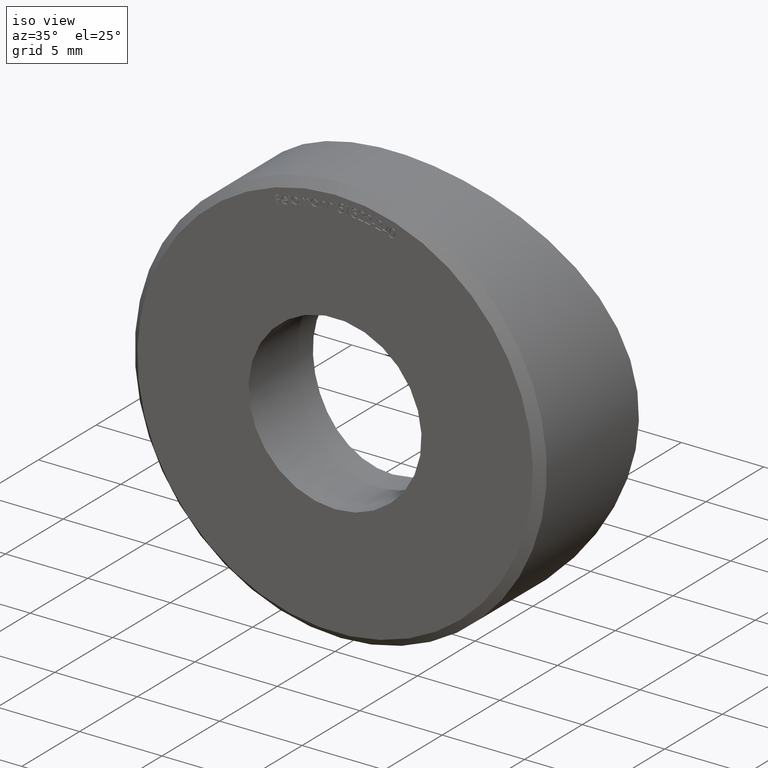
[diagram: clean part render]
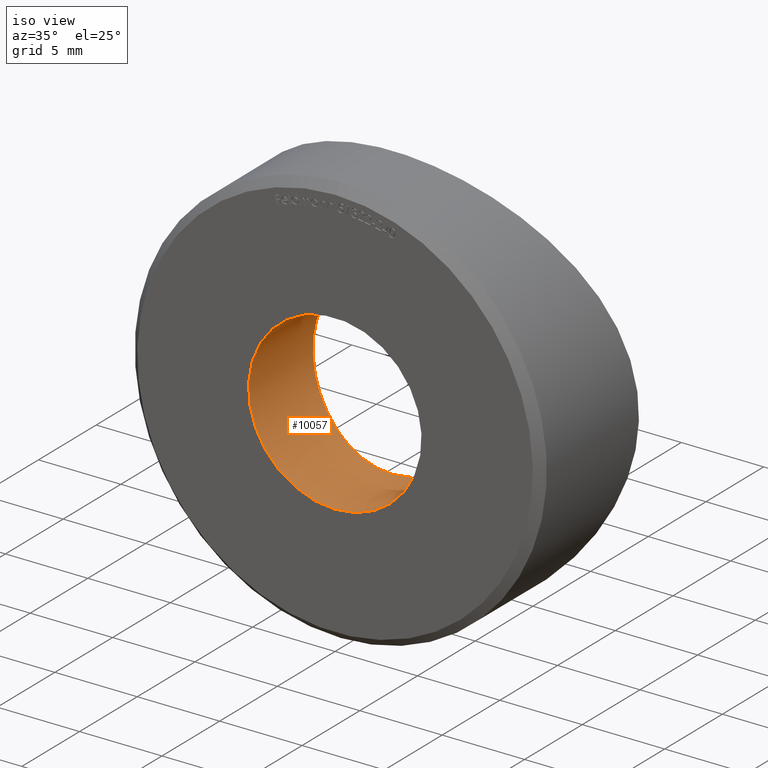
[diagram: same view with one face highlighted and labeled with its STEP entity id]
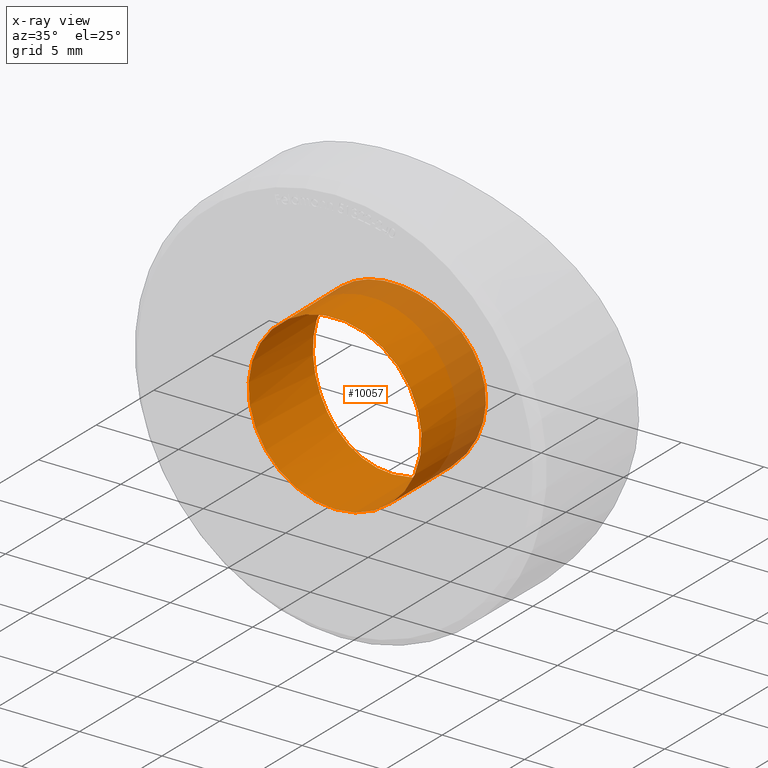
[diagram: x-ray of the same camera — body ghosted, the highlighted face saturated]
A machine part, iso view. The second image highlights one B-rep face of the part: STEP entity #10057.
The next image is the same camera in x-ray: the body ghosted, the highlighted face saturated — about 22% of this face is hidden behind the body in this view.
In plain terms, the highlighted cylindrical surface (bore or boss wall) has radius 5.25 mm, axis along (-0, -1, -0).
Its self-contained STEP definition (entity closure, byte-faithful):
#27 = CARTESIAN_POINT ( 'NONE',  ( -0.3479529114891046215, 4.999999999999997335, -5.250000000000000000 ) ) ;
#38 = CARTESIAN_POINT ( 'NONE',  ( 0.3479529114891066199, 4.999999999999996447, -5.250000000000000000 ) ) ;
#85 = CARTESIAN_POINT ( 'NONE',  ( 4.971906579533220238, 5.517283842985989395, -1.694768986933974597 ) ) ;
#128 = CARTESIAN_POINT ( 'NONE',  ( 5.249790503157839794, 5.577511804677987683, -0.3467127852579655056 ) ) ;
#294 = CARTESIAN_POINT ( 'NONE',  ( 1.696196519772347422, 5.057538925687953046, 4.980292679258128352 ) ) ;
#498 = VERTEX_POINT ( 'NONE', #6280 ) ;
#549 = CARTESIAN_POINT ( 'NONE',  ( -5.249774331981251763, 5.577508203072757631, 0.3499565593367189864 ) ) ;
#593 = CARTESIAN_POINT ( 'NONE',  ( -4.172615057934682348, 5.362416647142782544, 3.204450037822036634 ) ) ;
#880 = CARTESIAN_POINT ( 'NONE',  ( 1.360828355454703376, 5.037803099845311827, -5.073504494339569959 ) ) ;
#961 = CARTESIAN_POINT ( 'NONE',  ( -3.474037485874067244, 5.249936401432146127, -3.950932923535745100 ) ) ;
#1010 = CARTESIAN_POINT ( 'NONE',  ( 2.331574566845596053, 5.110701618748705322, -4.716414916459582329 ) ) ;
#1041 = CARTESIAN_POINT ( 'NONE',  ( -1.368539369070276956, 5.036424992077277452, -5.080244170512862034 ) ) ;
#1043 = DIRECTION ( 'NONE',  ( -0.000000000000000000, -1.000000000000000000, -0.000000000000000000 ) ) ;
#1045 = ORIENTED_EDGE ( 'NONE', *, *, #6501, .F. ) ;
#1338 = CARTESIAN_POINT ( 'NONE',  ( -0.6828514416580706570, 5.007251022273960572, 5.216962437871176306 ) ) ;
#1432 = CARTESIAN_POINT ( 'NONE',  ( 3.205406409578021254, 5.211963313942041154, 4.171874176737010664 ) ) ;
#1475 = CARTESIAN_POINT ( 'NONE',  ( -4.979711811381092978, 5.518595094060646744, 1.698275035533612254 ) ) ;
#1820 = CARTESIAN_POINT ( 'NONE',  ( 1.691184461417903462, 5.058719662867694922, -4.973147573172545854 ) ) ;
#1928 = CIRCLE ( 'NONE', #2554, 5.250000000000000000 ) ;
#1994 = CARTESIAN_POINT ( 'NONE',  ( -2.333647276698252782, 5.110927746810590477, -4.715249350335946943 ) ) ;
#2097 = CARTESIAN_POINT ( 'NONE',  ( 4.913988347805742229, 5.505133864415446610, -1.855913860214170263 ) ) ;
#2132 = DIRECTION ( 'NONE',  ( 0.000000000000000000, 0.000000000000000000, -1.000000000000000000 ) ) ;
#2180 = CARTESIAN_POINT ( 'NONE',  ( 5.072193131802817945, 5.538604767458379818, -1.365633108990562450 ) ) ;
#2402 = CARTESIAN_POINT ( 'NONE',  ( 0.000000000000000000, 0.000000000000000000, 0.000000000000000000 ) ) ;
#2474 = CARTESIAN_POINT ( 'NONE',  ( -5.250223463554537950, 5.577608232602430327, -0.3431526087521585833 ) ) ;
#2554 = AXIS2_PLACEMENT_3D ( 'NONE', #2402, #8392, #9327 ) ;
#2622 = EDGE_LOOP ( 'NONE', ( #10326 ) ) ;
#2627 = VERTEX_POINT ( 'NONE', #3548 ) ;
#2633 = CARTESIAN_POINT ( 'NONE',  ( 4.065758146820641628E-16, 4.999999999999997335, -5.250000000000000000 ) ) ;
#2853 = CARTESIAN_POINT ( 'NONE',  ( 4.171160614684572110, 5.362146249959417688, -3.206705529674104937 ) ) ;
#2892 = CARTESIAN_POINT ( 'NONE',  ( 1.194177440624313302, 5.028956327976600527, -5.115253556192294049 ) ) ;
#3012 = CARTESIAN_POINT ( 'NONE',  ( 4.784119817340459768, 5.478514335052380169, 2.168963541195236377 ) ) ;
#3134 = CARTESIAN_POINT ( 'NONE',  ( 5.250207562311784315, 5.577604691116224700, 0.3403390003389755170 ) ) ;
#3180 = AXIS2_PLACEMENT_3D ( 'NONE', #5862, #1043, #2132 ) ;
#3258 = CARTESIAN_POINT ( 'NONE',  ( -2.322385145224658665, 5.111440966785137263, 4.711545038092427085 ) ) ;
#3424 = CARTESIAN_POINT ( 'NONE',  ( -3.467045982926604264, 5.248908661545311105, 3.957172489185311282 ) ) ;
#3465 = CARTESIAN_POINT ( 'NONE',  ( -3.951433523773786316, 5.324199947869999505, 3.473585332777827439 ) ) ;
#3503 = CARTESIAN_POINT ( 'NONE',  ( -5.215050988986845049, 5.569701446026231295, 0.6950028837261943426 ) ) ;
#3548 = CARTESIAN_POINT ( 'NONE',  ( 0.000000000000000000, 4.999999999999997335, -5.250000000000000000 ) ) ;
#4140 = CARTESIAN_POINT ( 'NONE',  ( -1.693212808265568414, 5.057341981354980476, 4.981227410998107175 ) ) ;
#4352 = CARTESIAN_POINT ( 'NONE',  ( -4.552718715579123554, 5.432230490881972962, 2.636658636118158761 ) ) ;
#4469 = CARTESIAN_POINT ( 'NONE',  ( -4.167945886632631769, 5.362126567111193509, -3.196903236314720065 ) ) ;
#4856 = CARTESIAN_POINT ( 'NONE',  ( 0.6898874697012628010, 5.007510782262458271, -5.215752112062560286 ) ) ;
#4902 = CARTESIAN_POINT ( 'NONE',  ( 4.547458978806946384, 5.431864640364461927, 2.629191400381235333 ) ) ;
#5138 = CARTESIAN_POINT ( 'NONE',  ( -0.3410151467204361464, 4.999969335588581032, 5.250141056303954556 ) ) ;
#5740 = CARTESIAN_POINT ( 'NONE',  ( 4.717364956974497758, 5.464838567764750188, -2.329325829147060656 ) ) ;
#5817 = CARTESIAN_POINT ( 'NONE',  ( -3.835500213114928947, 5.306210300533034996, -3.588943433669523841 ) ) ;
#5862 = CARTESIAN_POINT ( 'NONE',  ( 0.000000000000000000, 9.337964145701008079, 0.000000000000000000 ) ) ;
#5953 = CARTESIAN_POINT ( 'NONE',  ( 5.216192074878003737, 5.569952638401040268, -0.6880295762451390518 ) ) ;
#6028 = CARTESIAN_POINT ( 'NONE',  ( 4.982052963071804896, 5.519092435475340785, 1.691292213652955789 ) ) ;
#6071 = CARTESIAN_POINT ( 'NONE',  ( 3.956639800253391126, 5.325048594560399806, 3.467893520540086261 ) ) ;
#6114 = CARTESIAN_POINT ( 'NONE',  ( -2.167419995369734398, 5.096934694970056690, 4.784774247256586399 ) ) ;
#6278 = CARTESIAN_POINT ( 'NONE',  ( -4.714462837687879215, 5.464251801876243597, 2.335702886238956832 ) ) ;
#6280 = CARTESIAN_POINT ( 'NONE',  ( 0.000000000000000000, 0.000000000000000000, -5.250000000000000000 ) ) ;
#6501 = EDGE_CURVE ( 'NONE', #2627, #2627, #8610, .T. ) ;
#6673 = CARTESIAN_POINT ( 'NONE',  ( 4.065758146820641628E-16, 4.999999999999997335, -5.250000000000000000 ) ) ;
#6704 = CARTESIAN_POINT ( 'NONE',  ( -3.209193993925825161, 5.212431823375257345, -4.169283095300570174 ) ) ;
#6771 = EDGE_LOOP ( 'NONE', ( #1045 ) ) ;
#6806 = CARTESIAN_POINT ( 'NONE',  ( 1.855103111811810201, 5.070828625128219080, -4.914333103360725374 ) ) ;
#7098 = CARTESIAN_POINT ( 'NONE',  ( 4.174830310225915220, 5.362808025580584115, 3.201535509564544579 ) ) ;
#7150 = CARTESIAN_POINT ( 'NONE',  ( 0.6938331070572055781, 5.007604811529376754, 5.215324655898616157 ) ) ;
#7234 = CARTESIAN_POINT ( 'NONE',  ( 3.469318134281287769, 5.249223032218082174, 3.955390709133563831 ) ) ;
#7329 = CARTESIAN_POINT ( 'NONE',  ( -5.216465219023501909, 5.570015642545652845, -0.6846948773448686687 ) ) ;
#7368 = CARTESIAN_POINT ( 'NONE',  ( -4.718620370906553063, 5.465086970933878519, -2.326985334898164837 ) ) ;
#7542 = FACE_OUTER_BOUND ( 'NONE', #6771, .T. ) ;
#7664 = CARTESIAN_POINT ( 'NONE',  ( 2.632717908919620875, 5.142215946433474016, -4.555082511113416999 ) ) ;
#7692 = CARTESIAN_POINT ( 'NONE',  ( -1.702130327558208256, 5.057975245859704039, -4.978176211816062846 ) ) ;
#7730 = CARTESIAN_POINT ( 'NONE',  ( -0.6912190302700732536, 5.007514296999095116, -5.215745113492191720 ) ) ;
#7985 = CARTESIAN_POINT ( 'NONE',  ( 5.081477644393159743, 5.540556642579239188, 1.363529589524022034 ) ) ;
#8127 = CYLINDRICAL_SURFACE ( 'NONE', #3180, 5.250000000000000000 ) ;
#8185 = CARTESIAN_POINT ( 'NONE',  ( 2.637834567275848308, 5.142791511104309876, 4.552031765351995496 ) ) ;
#8222 = CARTESIAN_POINT ( 'NONE',  ( -5.080566940619816840, 5.540360522147927291, 1.366610913172213504 ) ) ;
#8375 = CARTESIAN_POINT ( 'NONE',  ( -2.635182371131576495, 5.142461388720316329, -4.553862260794239170 ) ) ;
#8392 = DIRECTION ( 'NONE',  ( 0.000000000000000000, -1.000000000000000000, 0.000000000000000000 ) ) ;
#8590 = CARTESIAN_POINT ( 'NONE',  ( 3.954230417582409896, 5.324673113417457415, -3.470311174980525326 ) ) ;
#8610 = B_SPLINE_CURVE_WITH_KNOTS ( 'NONE', 3,
 ( #6673, #38, #4856, #2892, #880, #1820, #6806, #1010, #7664, #11512, #8635, #8590, #2853, #9571, #5740, #2097, #85, #2180, #8893, #5953, #128, #3134, #11722, #7985, #6028, #3012, #10669, #4902, #10912, #7098, #6071, #7234, #1432, #8185, #11976, #294, #8937, #7150, #8973, #5138, #1338, #9099, #4140, #6114, #3258, #9981, #10112, #12054, #3424, #3465, #593, #4352, #6278, #1475, #8222, #3503, #549, #2474, #7329, #10159, #10204, #7368, #9271, #10245, #4469, #11202, #5817, #961, #6704, #8375, #1994, #7692, #1041, #7730, #27, #2633 ),
 .UNSPECIFIED., .T., .F.,
 ( 4, 2, 2, 2, 2, 2, 2, 2, 2, 2, 2, 2, 2, 2, 2, 2, 2, 2, 2, 2, 2, 2, 2, 2, 2, 2, 2, 2, 2, 2, 2, 2, 2, 2, 2, 2, 2, 4 ),
 ( 0.000000000000000000, 0.001028811680339012909, 0.001543217520508519255, 0.002057623360678025818, 0.003086435041017037643, 0.004115246721356049901, 0.005144058401695062593, 0.006172870082034075286, 0.006687275922203581198, 0.007201681762373087978, 0.008230493442712101537, 0.009259305123051116831, 0.01028811680339013039, 0.01080252264355963630, 0.01131692848372914395, 0.01234574016406815231, 0.01337455184440716066, 0.01440336352474617075, 0.01543217520508517911, 0.01646098688542418573, 0.01748979856576320102, 0.01851861024610220591, 0.01903301608627171529, 0.01954742192644122120, 0.02057623360678022956, 0.02160504528711924138, 0.02263385696745824627, 0.02366266864779725809, 0.02469148032813626645, 0.02572029200847527827, 0.02674910368881428316, 0.02777791536915329498, 0.02829232120932280090, 0.02880672704949229987, 0.02983553872983130822, 0.03086435041017030964, 0.03189316209050931800, 0.03292197377084832288 ),
 .UNSPECIFIED. ) ;
#8635 = CARTESIAN_POINT ( 'NONE',  ( 3.471613659174740629, 5.249580797624526340, -3.953086951732790233 ) ) ;
#8893 = CARTESIAN_POINT ( 'NONE',  ( 5.114728641494709294, 5.547812617085863707, -1.196635716843575947 ) ) ;
#8937 = CARTESIAN_POINT ( 'NONE',  ( 1.368937886044918395, 5.036463161102044062, 5.080061486933353798 ) ) ;
#8973 = CARTESIAN_POINT ( 'NONE',  ( 0.3453445879906223981, 5.000030858449321158, 5.249858051121641722 ) ) ;
#9099 = CARTESIAN_POINT ( 'NONE',  ( -1.363750306068995055, 5.036128485961384627, 5.081650152482949601 ) ) ;
#9271 = CARTESIAN_POINT ( 'NONE',  ( -4.557632804501983159, 5.433167551874808154, -2.628438566618020111 ) ) ;
#9327 = DIRECTION ( 'NONE',  ( 0.000000000000000000, 0.000000000000000000, -1.000000000000000000 ) ) ;
#9571 = CARTESIAN_POINT ( 'NONE',  ( 4.554954362788810052, 5.432644378857775180, -2.633236028245370619 ) ) ;
#9606 = FACE_OUTER_BOUND ( 'NONE', #2622, .T. ) ;
#9981 = CARTESIAN_POINT ( 'NONE',  ( -2.626020874829240181, 5.142713449432125827, 4.549301459971036188 ) ) ;
#10057 = ADVANCED_FACE ( 'NONE', ( #9606, #7542 ), #8127, .F. ) ;
#10112 = CARTESIAN_POINT ( 'NONE',  ( -2.775081641875225102, 5.159541347199178674, 4.459923143562526171 ) ) ;
#10159 = CARTESIAN_POINT ( 'NONE',  ( -5.082909888379273156, 5.540866200860103952, -1.358066096683216095 ) ) ;
#10204 = CARTESIAN_POINT ( 'NONE',  ( -4.981360519982692914, 5.518949858943678066, -1.693011022859326475 ) ) ;
#10245 = CARTESIAN_POINT ( 'NONE',  ( -4.271345305947734872, 5.380533791949860145, -3.057394445790019066 ) ) ;
#10326 = ORIENTED_EDGE ( 'NONE', *, *, #10585, .T. ) ;
#10585 = EDGE_CURVE ( 'NONE', #498, #498, #1928, .T. ) ;
#10669 = CARTESIAN_POINT ( 'NONE',  ( 4.709659899487678381, 5.463539062724394491, 2.326184475687231856 ) ) ;
#10912 = CARTESIAN_POINT ( 'NONE',  ( 4.459414673437787080, 5.415101152372820081, 2.775834145779193740 ) ) ;
#11202 = CARTESIAN_POINT ( 'NONE',  ( -3.950222658303990997, 5.325003959646569918, -3.462326409522820114 ) ) ;
#11512 = CARTESIAN_POINT ( 'NONE',  ( 3.202616318014992025, 5.211575919242022792, -4.174114156390730024 ) ) ;
#11722 = CARTESIAN_POINT ( 'NONE',  ( 5.215875205500069001, 5.569883873518000961, 0.6894010680471931440 ) ) ;
#11976 = CARTESIAN_POINT ( 'NONE',  ( 2.330418781662284555, 5.110596688914993635, 4.716942453203729180 ) ) ;
#12054 = CARTESIAN_POINT ( 'NONE',  ( -3.203383941644673438, 5.211671543616769320, 4.173583781912522106 ) ) ;